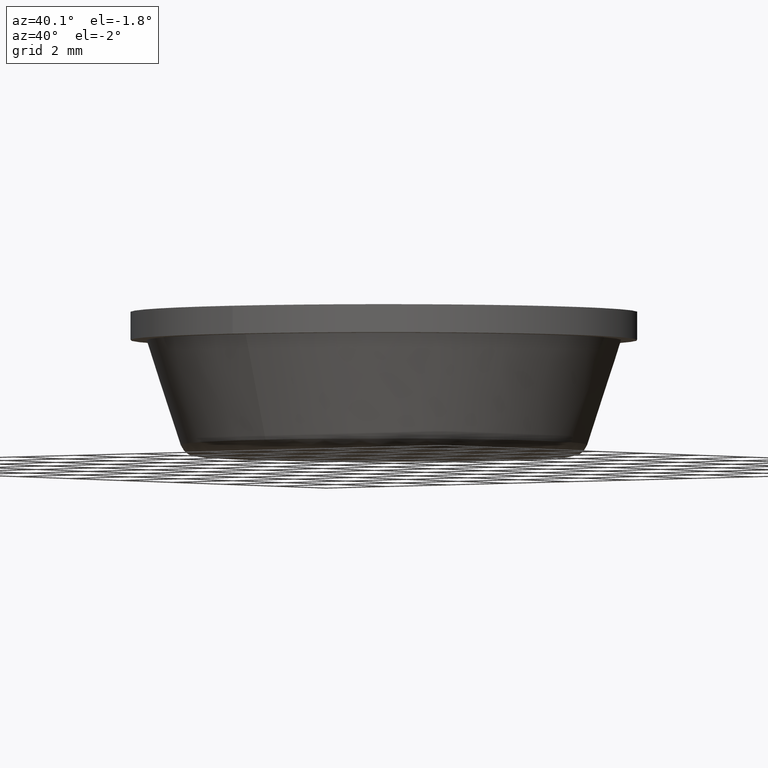
[diagram: clean part render]
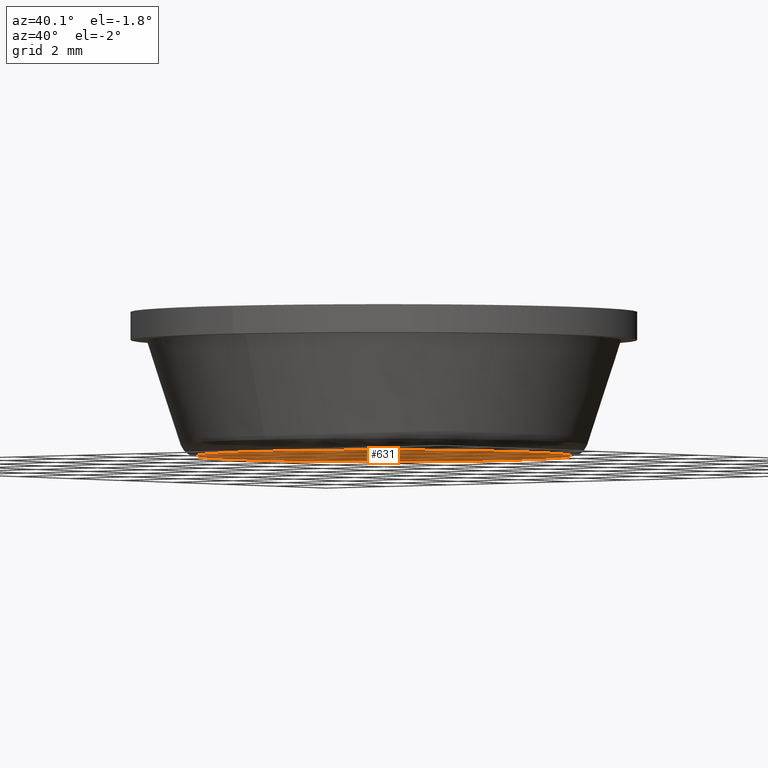
[diagram: same view with one face highlighted and labeled with its STEP entity id]
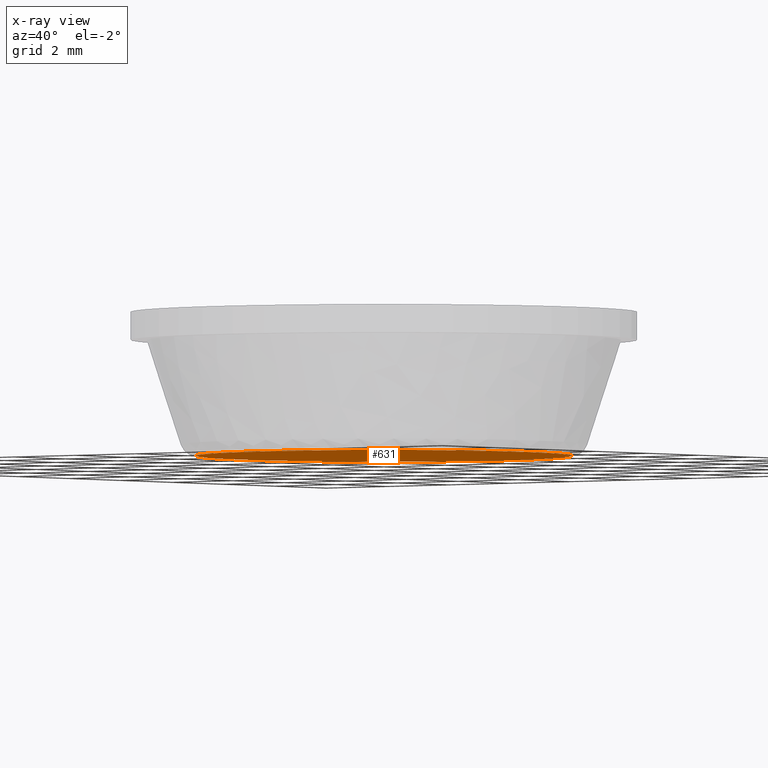
[diagram: x-ray of the same camera — body ghosted, the highlighted face saturated]
A machine part, auxiliary view. The second image highlights one B-rep face of the part: STEP entity #631.
The next image is the same camera in x-ray: the body ghosted, the highlighted face saturated — about 0% of this face is hidden behind the body in this view.
In plain terms, the highlighted face is a freeform B-spline surface patch.
Its self-contained STEP definition (entity closure, byte-faithful):
#486=CARTESIAN_POINT('',(-4.514046218408184,1.342264869376201,-4.168770E-015));
#487=VERTEX_POINT('',#486);
#501=CARTESIAN_POINT('',(-4.709383000000000,0.0,0.0));
#502=VERTEX_POINT('',#501);
#503=CARTESIAN_POINT('',(-4.709383000000000,0.0,0.0));
#504=CARTESIAN_POINT('',(-4.709383000000000,0.685345895502756,0.0));
#505=CARTESIAN_POINT('',(-4.514046218408184,1.342264869376201,-4.168770E-015));
#513=(BOUNDED_CURVE()B_SPLINE_CURVE(2,(#503,#504,#505),.UNSPECIFIED.,.F.,.U.)B_SPLINE_CURVE_WITH_KNOTS((3,3),(0.0,0.048526662064734),.UNSPECIFIED.)CURVE()GEOMETRIC_REPRESENTATION_ITEM()RATIONAL_B_SPLINE_CURVE((1.0,0.943147478998350,0.908365862590102))REPRESENTATION_ITEM(''));
#514=EDGE_CURVE('',#502,#487,#513,.T.);
#516=CARTESIAN_POINT('',(4.709383000000000,0.0,0.0));
#517=VERTEX_POINT('',#516);
#518=CARTESIAN_POINT('',(4.709383000000000,0.0,0.0));
#519=CARTESIAN_POINT('',(4.709383000000000,-4.709383000000000,0.0));
#520=CARTESIAN_POINT('',(0.0,-4.709383000000000,0.0));
#521=CARTESIAN_POINT('',(-4.709383000000000,-4.709383000000000,0.0));
#522=CARTESIAN_POINT('',(-4.709383000000000,0.0,0.0));
#530=(BOUNDED_CURVE()B_SPLINE_CURVE(2,(#518,#519,#520,#521,#522),.UNSPECIFIED.,.F.,.U.)B_SPLINE_CURVE_WITH_KNOTS((3,2,3),(0.500000000000000,0.750000000000000,1.0),.UNSPECIFIED.)CURVE()GEOMETRIC_REPRESENTATION_ITEM()RATIONAL_B_SPLINE_CURVE((1.0,0.707106781186548,1.0,0.707106781186548,1.0))REPRESENTATION_ITEM(''));
#531=EDGE_CURVE('',#517,#502,#530,.T.);
#533=CARTESIAN_POINT('',(0.812076449406390,4.638838225777398,-4.163688E-015));
#534=VERTEX_POINT('',#533);
#535=CARTESIAN_POINT('',(0.812076449406390,4.638838225777398,-4.163688E-015));
#536=CARTESIAN_POINT('',(4.709382999999999,3.956574539510612,0.0));
#537=CARTESIAN_POINT('',(4.709383000000000,0.0,0.0));
#545=(BOUNDED_CURVE()B_SPLINE_CURVE(2,(#535,#536,#537),.UNSPECIFIED.,.F.,.U.)B_SPLINE_CURVE_WITH_KNOTS((3,3),(0.279646299376955,0.500000000000000),.UNSPECIFIED.)CURVE()GEOMETRIC_REPRESENTATION_ITEM()RATIONAL_B_SPLINE_CURVE((0.938771991540446,0.741839581388242,1.0))REPRESENTATION_ITEM(''));
#546=EDGE_CURVE('',#534,#517,#545,.T.);
#583=CARTESIAN_POINT('',(-4.514046218408184,1.342264869376201,-4.168770E-015));
#584=CARTESIAN_POINT('',(-3.512823776387831,4.709382999999999,0.0));
#585=CARTESIAN_POINT('',(0.0,4.709383000000000,0.0));
#586=CARTESIAN_POINT('',(0.409102323652175,4.709383000000000,0.0));
#587=CARTESIAN_POINT('',(0.812076449406390,4.638838225777398,-4.163688E-015));
#595=(BOUNDED_CURVE()B_SPLINE_CURVE(2,(#583,#584,#585,#586,#587),.UNSPECIFIED.,.F.,.U.)B_SPLINE_CURVE_WITH_KNOTS((3,2,3),(0.048526662064734,0.250000000000000,0.279646299376955),.UNSPECIFIED.)CURVE()GEOMETRIC_REPRESENTATION_ITEM()RATIONAL_B_SPLINE_CURVE((0.908365862590102,0.763959302188197,1.0,0.965267199798305,0.938771991540446))REPRESENTATION_ITEM(''));
#596=EDGE_CURVE('',#487,#534,#595,.T.);
#620=CARTESIAN_POINT('',(5.179850343444604,-5.179799911322315,0.0));
#621=CARTESIAN_POINT('',(-5.179850596075594,-5.179799911322315,0.0));
#622=CARTESIAN_POINT('',(5.179850343444604,5.178790511736138,0.0));
#623=CARTESIAN_POINT('',(-5.179850596075594,5.178790511736138,0.0));
#624=B_SPLINE_SURFACE_WITH_KNOTS('',1,1,((#620,#622),(#621,#623)),.UNSPECIFIED.,.F.,.F.,.U.,(2,2),(2,2),(0.0,10.359700939520200),(0.0,10.358590423058450),.UNSPECIFIED.);
#625=ORIENTED_EDGE('',*,*,#514,.T.);
#626=ORIENTED_EDGE('',*,*,#596,.T.);
#627=ORIENTED_EDGE('',*,*,#546,.T.);
#628=ORIENTED_EDGE('',*,*,#531,.T.);
#629=EDGE_LOOP('',(#625,#626,#627,#628));
#630=FACE_OUTER_BOUND('',#629,.T.);
#631=ADVANCED_FACE('',(#630),#624,.T.);